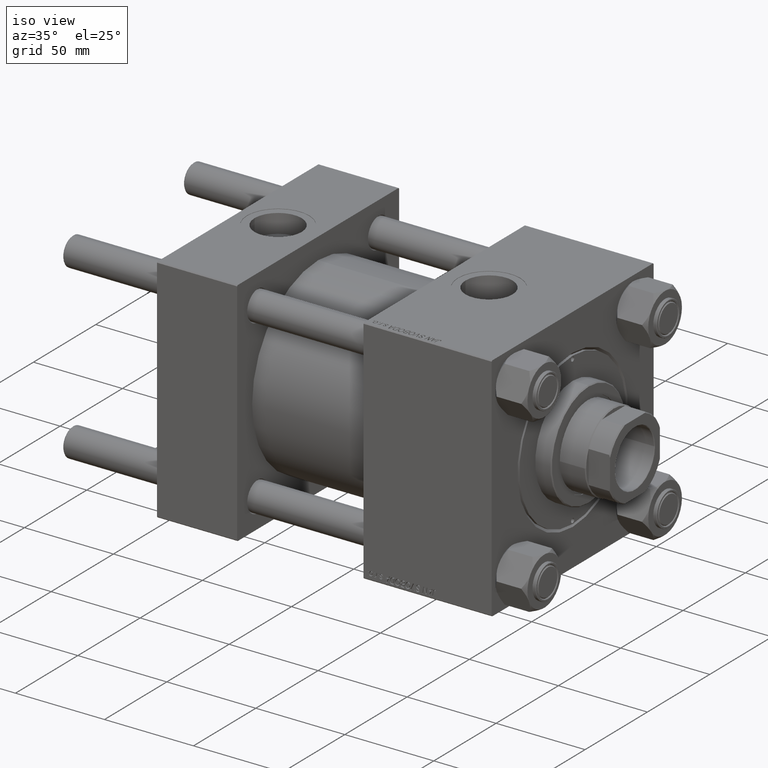
[diagram: clean part render]
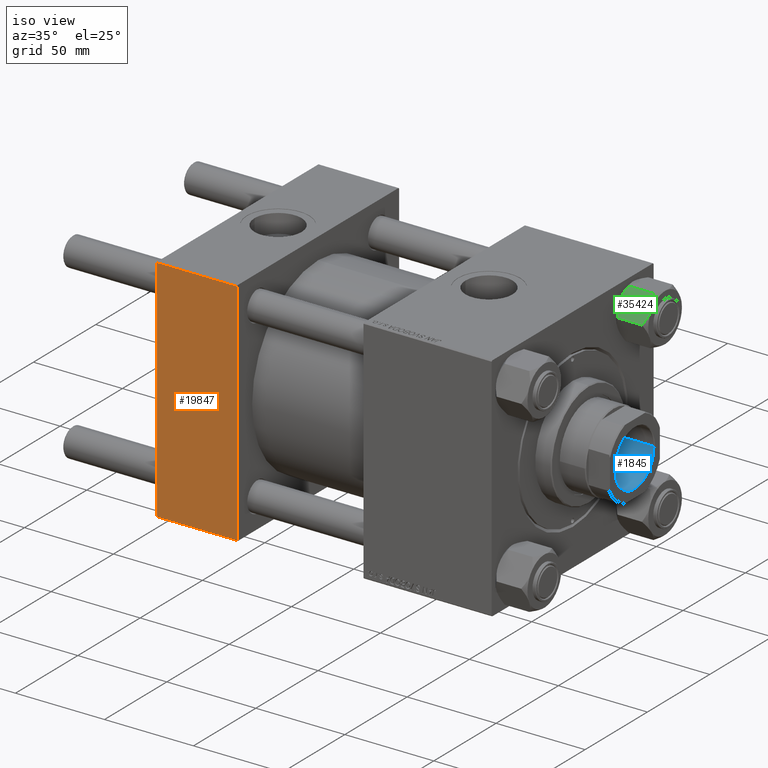
[diagram: same view with three faces highlighted in distinct colors, each labeled with its STEP entity id]
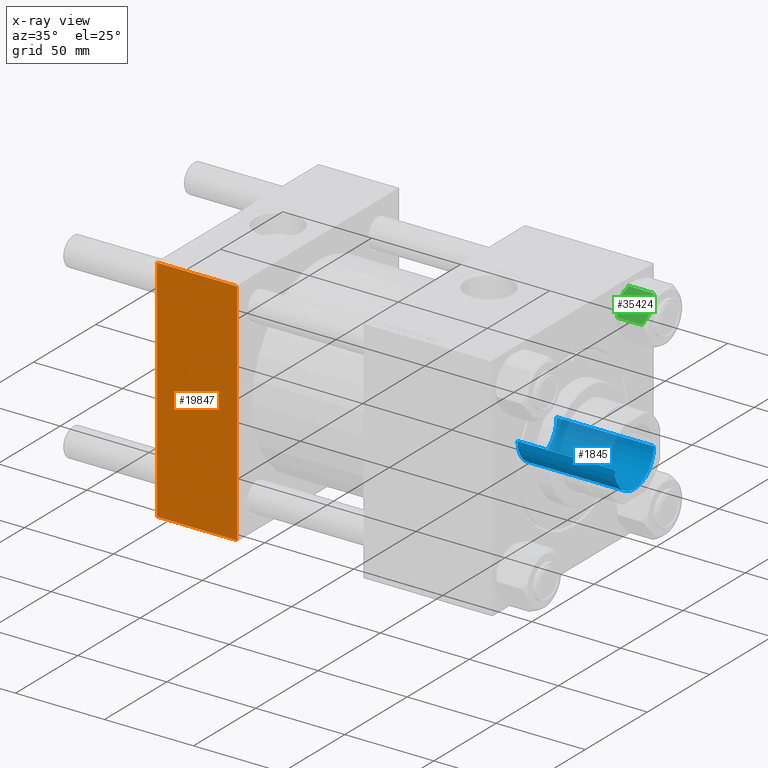
[diagram: x-ray of the same camera — body ghosted, the three highlighted faces saturated]
A machine part, iso view with three faces highlighted in distinct colors.
The next image is the same camera in x-ray (body ghosted, the three faces saturated) — at least one of them is partly hidden behind the body in this view.
Their STEP definitions:

[orange] entity #19847 — the highlighted planar face has unit normal (0, 1, 0).
#3453 = VECTOR ( 'NONE', #24790, 1000.000000000000000 ) ;
#3996 = LINE ( 'NONE', #42187, #19653 ) ;
#4502 = ORIENTED_EDGE ( 'NONE', *, *, #27428, .T. ) ;
#7323 = DIRECTION ( 'NONE',  ( 1.000000000000000000, 0.000000000000000000, 0.000000000000000000 ) ) ;
#7455 = EDGE_LOOP ( 'NONE', ( #27649, #4502, #46572, #9833 ) ) ;
#9642 = VECTOR ( 'NONE', #18484, 1000.000000000000000 ) ;
#9833 = ORIENTED_EDGE ( 'NONE', *, *, #10905, .T. ) ;
#10905 = EDGE_CURVE ( 'NONE', #41879, #36619, #34765, .T. ) ;
#12341 = CARTESIAN_POINT ( 'NONE',  ( 45.00000000000000000, -65.00000000000000000, -64.49999999999991473 ) ) ;
#14450 = LINE ( 'NONE', #18030, #27570 ) ;
#17614 = CARTESIAN_POINT ( 'NONE',  ( 45.00000000000000000, -65.00000000000000000, 64.50000000000000000 ) ) ;
#18030 = CARTESIAN_POINT ( 'NONE',  ( 45.00000000000000000, -65.00000000000000000, 65.00000000000000000 ) ) ;
#18205 = DIRECTION ( 'NONE',  ( 0.000000000000000000, -0.000000000000000000, 1.000000000000000000 ) ) ;
#18484 = DIRECTION ( 'NONE',  ( -1.000000000000000000, 0.000000000000000000, 0.000000000000000000 ) ) ;
#19653 = VECTOR ( 'NONE', #7323, 1000.000000000000000 ) ;
#19847 = ADVANCED_FACE ( 'NONE', ( #41374 ), #33227, .F. ) ;
#20457 = EDGE_CURVE ( 'NONE', #41879, #49352, #14450, .T. ) ;
#22532 = DIRECTION ( 'NONE',  ( -0.000000000000000000, 1.000000000000000000, 0.000000000000000000 ) ) ;
#23997 = VERTEX_POINT ( 'NONE', #45854 ) ;
#24790 = DIRECTION ( 'NONE',  ( 0.000000000000000000, 0.000000000000000000, -1.000000000000000000 ) ) ;
#27428 = EDGE_CURVE ( 'NONE', #23997, #49352, #3996, .T. ) ;
#27570 = VECTOR ( 'NONE', #33550, 1000.000000000000000 ) ;
#27649 = ORIENTED_EDGE ( 'NONE', *, *, #31880, .T. ) ;
#28600 = LINE ( 'NONE', #44144, #3453 ) ;
#29180 = AXIS2_PLACEMENT_3D ( 'NONE', #41870, #22532, #18205 ) ;
#31880 = EDGE_CURVE ( 'NONE', #36619, #23997, #28600, .T. ) ;
#32853 = CARTESIAN_POINT ( 'NONE',  ( 0.000000000000000000, -65.00000000000000000, 64.50000000000000000 ) ) ;
#33227 = PLANE ( 'NONE',  #29180 ) ;
#33550 = DIRECTION ( 'NONE',  ( 0.000000000000000000, 0.000000000000000000, -1.000000000000000000 ) ) ;
#34765 = LINE ( 'NONE', #50314, #9642 ) ;
#36619 = VERTEX_POINT ( 'NONE', #32853 ) ;
#41374 = FACE_OUTER_BOUND ( 'NONE', #7455, .T. ) ;
#41870 = CARTESIAN_POINT ( 'NONE',  ( 45.00000000000000000, -65.00000000000000000, 65.00000000000000000 ) ) ;
#41879 = VERTEX_POINT ( 'NONE', #17614 ) ;
#42187 = CARTESIAN_POINT ( 'NONE',  ( 45.00000000000000000, -65.00000000000000000, -64.49999999999991473 ) ) ;
#44144 = CARTESIAN_POINT ( 'NONE',  ( 0.000000000000000000, -65.00000000000000000, 65.00000000000000000 ) ) ;
#45854 = CARTESIAN_POINT ( 'NONE',  ( 0.000000000000000000, -65.00000000000000000, -64.49999999999991473 ) ) ;
#46572 = ORIENTED_EDGE ( 'NONE', *, *, #20457, .F. ) ;
#49352 = VERTEX_POINT ( 'NONE', #12341 ) ;
#50314 = CARTESIAN_POINT ( 'NONE',  ( 45.00000000000000000, -65.00000000000000000, 64.50000000000000000 ) ) ;

[blue] entity #1845 — the highlighted cylindrical surface (edge-blend (fillet) strip) has radius 15.75 mm, axis along (1, 0, -0).
#415 = CARTESIAN_POINT ( 'NONE',  ( -15.74999999999998934, 1.928818708657080161E-15, 123.0000000000000142 ) ) ;
#1845 = ADVANCED_FACE ( 'NONE', ( #21239 ), #28872, .F. ) ;
#3588 = CARTESIAN_POINT ( 'NONE',  ( 15.74999999999998934, 0.000000000000000000, 123.0000000000000142 ) ) ;
#5539 = AXIS2_PLACEMENT_3D ( 'NONE', #29521, #29775, #49392 ) ;
#6394 = DIRECTION ( 'NONE',  ( -0.000000000000000000, -0.000000000000000000, 1.000000000000000000 ) ) ;
#7789 = CARTESIAN_POINT ( 'NONE',  ( 15.74999999999999289, 0.000000000000000000, 177.6999999999999886 ) ) ;
#8179 = CARTESIAN_POINT ( 'NONE',  ( 0.000000000000000000, 0.000000000000000000, 177.6999999999999886 ) ) ;
#10460 = LINE ( 'NONE', #48664, #46602 ) ;
#13659 = DIRECTION ( 'NONE',  ( -0.000000000000000000, -0.000000000000000000, 1.000000000000000000 ) ) ;
#14756 = ORIENTED_EDGE ( 'NONE', *, *, #46018, .T. ) ;
#15768 = EDGE_LOOP ( 'NONE', ( #18475, #17594, #46747, #14756 ) ) ;
#16421 = VERTEX_POINT ( 'NONE', #415 ) ;
#17485 = LINE ( 'NONE', #48554, #33861 ) ;
#17594 = ORIENTED_EDGE ( 'NONE', *, *, #18196, .F. ) ;
#17612 = CIRCLE ( 'NONE', #32219, 15.74999999999999289 ) ;
#18196 = EDGE_CURVE ( 'NONE', #21050, #16421, #27460, .T. ) ;
#18475 = ORIENTED_EDGE ( 'NONE', *, *, #42958, .F. ) ;
#21050 = VERTEX_POINT ( 'NONE', #3588 ) ;
#21239 = FACE_OUTER_BOUND ( 'NONE', #15768, .T. ) ;
#22518 = DIRECTION ( 'NONE',  ( 0.000000000000000000, 0.000000000000000000, 1.000000000000000000 ) ) ;
#24559 = CARTESIAN_POINT ( 'NONE',  ( 0.000000000000000000, 0.000000000000000000, 178.0000000000000284 ) ) ;
#24636 = VERTEX_POINT ( 'NONE', #7789 ) ;
#27460 = CIRCLE ( 'NONE', #5539, 15.74999999999998934 ) ;
#27751 = DIRECTION ( 'NONE',  ( 1.000000000000000000, 0.000000000000000000, 0.000000000000000000 ) ) ;
#28872 = CYLINDRICAL_SURFACE ( 'NONE', #41868, 15.74999999999999289 ) ;
#29521 = CARTESIAN_POINT ( 'NONE',  ( 0.000000000000000000, 0.000000000000000000, 123.0000000000000142 ) ) ;
#29775 = DIRECTION ( 'NONE',  ( -0.000000000000000000, -0.000000000000000000, 1.000000000000000000 ) ) ;
#32219 = AXIS2_PLACEMENT_3D ( 'NONE', #8179, #22518, #27751 ) ;
#33861 = VECTOR ( 'NONE', #13659, 1000.000000000000000 ) ;
#40787 = VERTEX_POINT ( 'NONE', #48354 ) ;
#41868 = AXIS2_PLACEMENT_3D ( 'NONE', #24559, #48489, #43917 ) ;
#42958 = EDGE_CURVE ( 'NONE', #16421, #40787, #17485, .T. ) ;
#43917 = DIRECTION ( 'NONE',  ( 1.000000000000000000, 0.000000000000000000, 0.000000000000000000 ) ) ;
#46018 = EDGE_CURVE ( 'NONE', #24636, #40787, #17612, .T. ) ;
#46602 = VECTOR ( 'NONE', #6394, 1000.000000000000000 ) ;
#46747 = ORIENTED_EDGE ( 'NONE', *, *, #48712, .T. ) ;
#48354 = CARTESIAN_POINT ( 'NONE',  ( -15.74999999999999289, 1.928818708657080556E-15, 177.6999999999999886 ) ) ;
#48489 = DIRECTION ( 'NONE',  ( -0.000000000000000000, -0.000000000000000000, 1.000000000000000000 ) ) ;
#48554 = CARTESIAN_POINT ( 'NONE',  ( -15.74999999999999289, 1.928818708657080556E-15, 178.0000000000000284 ) ) ;
#48664 = CARTESIAN_POINT ( 'NONE',  ( 15.74999999999999289, 0.000000000000000000, 178.0000000000000284 ) ) ;
#48712 = EDGE_CURVE ( 'NONE', #21050, #24636, #10460, .T. ) ;
#49392 = DIRECTION ( 'NONE',  ( 1.000000000000000000, 0.000000000000000000, 0.000000000000000000 ) ) ;

[green] entity #35424 — the highlighted planar face has unit normal (0, 0.8135, -0.5816).
#335 = CARTESIAN_POINT ( 'NONE',  ( -15.62000000000000277, -9.678749765951853952E-16, -1.999999999999998224 ) ) ;
#455 = CARTESIAN_POINT ( 'NONE',  ( -14.92760668674624647, -1.199260397376458398, -1.411989271640067045 ) ) ;
#500 = CARTESIAN_POINT ( 'NONE',  ( -15.62000000000000277, -9.678749765951853952E-16, -16.00000000000000000 ) ) ;
#616 = CARTESIAN_POINT ( 'NONE',  ( -9.114548888011778871, -11.26777185211904353, -17.08577173959730544 ) ) ;
#864 = CARTESIAN_POINT ( 'NONE',  ( -7.903528262322667253, -13.36532110482643176, -16.00000000000000000 ) ) ;
#957 = CARTESIAN_POINT ( 'NONE',  ( -13.36540581434587338, -3.905071680002329515, -0.3836066851120569221 ) ) ;
#1040 = CARTESIAN_POINT ( 'NONE',  ( -11.71499999999999808, -6.763658403556473964, 0.000000000000000000 ) ) ;
#1364 = PLANE ( 'NONE',  #33637 ) ;
#1451 = VERTEX_POINT ( 'NONE', #5082 ) ;
#1456 = CARTESIAN_POINT ( 'NONE',  ( -14.31545111198821019, -2.259544954993900845, -0.9142282604026920056 ) ) ;
#2286 = CARTESIAN_POINT ( 'NONE',  ( -7.809999999999990727, -13.52731680711293727, -1.999999999999998224 ) ) ;
#2762 = LINE ( 'NONE', #18282, #30549 ) ;
#3476 = VECTOR ( 'NONE', #9700, 1000.000000000000227 ) ;
#3690 = CARTESIAN_POINT ( 'NONE',  ( -12.37702203890362007, -5.617002596445060725, -18.00000000000000000 ) ) ;
#5082 = CARTESIAN_POINT ( 'NONE',  ( -15.52647173767732625, -0.1619957022865126384, -16.00000000000000000 ) ) ;
#5118 = B_SPLINE_CURVE_WITH_KNOTS ( 'NONE', 3,
 ( #42128, #3690, #8009, #7509, #42629, #11577, #31411, #23037 ),
 .UNSPECIFIED., .F., .F.,
 ( 4, 2, 2, 4 ),
 ( 0.007890825462474418753, 0.01181022244528553457, 0.01376992093669109074, 0.01572961942809664865 ),
 .UNSPECIFIED. ) ;
#5644 = VERTEX_POINT ( 'NONE', #6060 ) ;
#6060 = CARTESIAN_POINT ( 'NONE',  ( -7.903528262322667253, -13.36532110482643176, -2.000000000000000000 ) ) ;
#6781 = CARTESIAN_POINT ( 'NONE',  ( -8.506059550806609693, -12.32170630002229927, -1.434462921875002905 ) ) ;
#7289 = CARTESIAN_POINT ( 'NONE',  ( -9.124083218049230837, -11.25125790807803661, -0.9473872146228132785 ) ) ;
#7509 = CARTESIAN_POINT ( 'NONE',  ( -13.99051971937273819, -2.822342635978014158, -17.26828031537188224 ) ) ;
#8009 = CARTESIAN_POINT ( 'NONE',  ( -13.02784502466562344, -4.489744118371593373, -17.80281335400754728 ) ) ;
#8129 = CARTESIAN_POINT ( 'NONE',  ( -11.71499999999999808, -6.763658403556473964, -18.00000000000000000 ) ) ;
#9254 = CARTESIAN_POINT ( 'NONE',  ( -10.06459418565411745, -9.622245127110614860, -17.61639331488794369 ) ) ;
#9504 = DIRECTION ( 'NONE',  ( -0.5000000000000004441, 0.8660254037844382635, 0.000000000000000000 ) ) ;
#9700 = DIRECTION ( 'NONE',  ( -0.5000000000000004441, 0.8660254037844382635, 0.000000000000000000 ) ) ;
#10594 = CARTESIAN_POINT ( 'NONE',  ( -10.40215497533436739, -9.037572688741352778, -0.1971866459924528636 ) ) ;
#11577 = CARTESIAN_POINT ( 'NONE',  ( -14.92394044919338292, -1.205610507090640215, -16.56553707812499709 ) ) ;
#12173 = CARTESIAN_POINT ( 'NONE',  ( -7.809999999999990727, -13.52731680711293727, -18.00000000000000000 ) ) ;
#12813 = CARTESIAN_POINT ( 'NONE',  ( -11.71499999999999808, -6.763658403556473964, -18.00000000000000000 ) ) ;
#13311 = ORIENTED_EDGE ( 'NONE', *, *, #48124, .F. ) ;
#14767 = VERTEX_POINT ( 'NONE', #33905 ) ;
#15152 = EDGE_CURVE ( 'NONE', #14767, #44387, #24393, .T. ) ;
#16384 = CARTESIAN_POINT ( 'NONE',  ( -11.04378428799594225, -7.926238119586011877, -17.94910618364698252 ) ) ;
#16474 = CARTESIAN_POINT ( 'NONE',  ( -12.38621571200405036, -5.601078687526934274, -0.05089381635301216955 ) ) ;
#16887 = CARTESIAN_POINT ( 'NONE',  ( -7.809999999999990727, -13.52731680711293727, -18.00000000000000000 ) ) ;
#17141 = CARTESIAN_POINT ( 'NONE',  ( -7.809999999999990727, -13.52731680711293727, -1.999999999999998224 ) ) ;
#17150 = ORIENTED_EDGE ( 'NONE', *, *, #41084, .F. ) ;
#17300 = EDGE_CURVE ( 'NONE', #20277, #41691, #20073, .T. ) ;
#17372 = CARTESIAN_POINT ( 'NONE',  ( -7.809999999999990727, -13.52731680711293727, -1.999999999999998224 ) ) ;
#17720 = ORIENTED_EDGE ( 'NONE', *, *, #17300, .F. ) ;
#18234 = CARTESIAN_POINT ( 'NONE',  ( -7.903528262322667253, -13.36532110482643176, -2.000000000000000000 ) ) ;
#18282 = CARTESIAN_POINT ( 'NONE',  ( -7.809999999999990727, -13.52731680711293727, -16.00000000000000000 ) ) ;
#18489 = CARTESIAN_POINT ( 'NONE',  ( -11.71499999999999808, -6.763658403556473964, 0.000000000000000000 ) ) ;
#18742 = CARTESIAN_POINT ( 'NONE',  ( -11.05297796109637432, -7.910314210667888979, 1.661878642512937265E-15 ) ) ;
#20073 = LINE ( 'NONE', #31260, #45161 ) ;
#20277 = VERTEX_POINT ( 'NONE', #500 ) ;
#20567 = DIRECTION ( 'NONE',  ( -0.000000000000000000, -0.000000000000000000, 1.000000000000000000 ) ) ;
#20783 = B_SPLINE_CURVE_WITH_KNOTS ( 'NONE', 3,
 ( #35322, #455, #1456, #957, #31488, #16474, #47036, #48042 ),
 .UNSPECIFIED., .F., .F.,
 ( 4, 2, 2, 4 ),
 ( 4.472842642001277084E-07, 0.003945636373369319598, 0.005918230917921879150, 0.007890825462474437835 ),
 .UNSPECIFIED. ) ;
#20958 = DIRECTION ( 'NONE',  ( 0.5000000000000004441, -0.8660254037844382635, 0.000000000000000000 ) ) ;
#21103 = DIRECTION ( 'NONE',  ( -0.5000000000000004441, 0.8660254037844382635, 0.000000000000000000 ) ) ;
#21876 = DIRECTION ( 'NONE',  ( 0.5000000000000004441, -0.8660254037844382635, 0.000000000000000000 ) ) ;
#22154 = ORIENTED_EDGE ( 'NONE', *, *, #46966, .F. ) ;
#22793 = ORIENTED_EDGE ( 'NONE', *, *, #33557, .F. ) ;
#23037 = CARTESIAN_POINT ( 'NONE',  ( -15.52647173767732625, -0.1619957022865126384, -16.00000000000000000 ) ) ;
#23285 = VERTEX_POINT ( 'NONE', #38066 ) ;
#24026 = CARTESIAN_POINT ( 'NONE',  ( -11.38181071908713982, -7.340759166634878596, -18.00000000000000355 ) ) ;
#24393 = LINE ( 'NONE', #12173, #25107 ) ;
#25107 = VECTOR ( 'NONE', #20567, 1000.000000000000000 ) ;
#25574 = VECTOR ( 'NONE', #20958, 1000.000000000000227 ) ;
#25671 = VERTEX_POINT ( 'NONE', #38026 ) ;
#25689 = LINE ( 'NONE', #2286, #36838 ) ;
#25783 = ORIENTED_EDGE ( 'NONE', *, *, #37125, .F. ) ;
#27112 = VERTEX_POINT ( 'NONE', #8129 ) ;
#28837 = CARTESIAN_POINT ( 'NONE',  ( -10.38662926516871288, -9.064464007571855220, -17.75691532989870680 ) ) ;
#29035 = ORIENTED_EDGE ( 'NONE', *, *, #15152, .T. ) ;
#30549 = VECTOR ( 'NONE', #21103, 1000.000000000000227 ) ;
#31260 = CARTESIAN_POINT ( 'NONE',  ( -15.62000000000000277, -9.678749765951853952E-16, -18.00000000000000000 ) ) ;
#31411 = CARTESIAN_POINT ( 'NONE',  ( -15.22736220980735666, -0.6800686015852318578, -16.29368822085855584 ) ) ;
#31488 = CARTESIAN_POINT ( 'NONE',  ( -13.04337073483127796, -4.462852799541088267, -0.2430846701012951416 ) ) ;
#31764 = DIRECTION ( 'NONE',  ( -0.000000000000000000, -0.000000000000000000, 1.000000000000000000 ) ) ;
#33557 = EDGE_CURVE ( 'NONE', #34496, #5644, #43113, .T. ) ;
#33637 = AXIS2_PLACEMENT_3D ( 'NONE', #16887, #44385, #9504 ) ;
#33905 = CARTESIAN_POINT ( 'NONE',  ( -7.809999999999990727, -13.52731680711293727, -16.00000000000000000 ) ) ;
#34104 = EDGE_CURVE ( 'NONE', #41691, #25671, #25689, .T. ) ;
#34265 = CARTESIAN_POINT ( 'NONE',  ( -9.439480280627249087, -10.70497417113492844, -0.7317196846281118772 ) ) ;
#34496 = VERTEX_POINT ( 'NONE', #1040 ) ;
#35322 = CARTESIAN_POINT ( 'NONE',  ( -15.52647173767732625, -0.1619957022865126384, -2.000000000000000000 ) ) ;
#35424 = ADVANCED_FACE ( 'NONE', ( #36224 ), #1364, .F. ) ;
#36224 = FACE_OUTER_BOUND ( 'NONE', #45022, .T. ) ;
#36401 = ORIENTED_EDGE ( 'NONE', *, *, #47684, .F. ) ;
#36838 = VECTOR ( 'NONE', #21876, 1000.000000000000227 ) ;
#37125 = EDGE_CURVE ( 'NONE', #5644, #44387, #39555, .T. ) ;
#38026 = CARTESIAN_POINT ( 'NONE',  ( -15.52647173767732625, -0.1619957022865126384, -2.000000000000000000 ) ) ;
#38066 = CARTESIAN_POINT ( 'NONE',  ( -7.903528262322667253, -13.36532110482643176, -16.00000000000000000 ) ) ;
#38329 = CARTESIAN_POINT ( 'NONE',  ( -8.202637790192634171, -12.84724820552771085, -1.706311779141443496 ) ) ;
#39555 = LINE ( 'NONE', #17141, #25574 ) ;
#39911 = EDGE_CURVE ( 'NONE', #14767, #23285, #2762, .T. ) ;
#41004 = B_SPLINE_CURVE_WITH_KNOTS ( 'NONE', 3,
 ( #864, #44388, #616, #9254, #28837, #16384, #24026, #12813 ),
 .UNSPECIFIED., .F., .F.,
 ( 4, 2, 2, 4 ),
 ( 4.472842641837737257E-07, 0.003945636373369302251, 0.005918230917921860068, 0.007890825462474418753 ),
 .UNSPECIFIED. ) ;
#41084 = EDGE_CURVE ( 'NONE', #25671, #34496, #20783, .T. ) ;
#41691 = VERTEX_POINT ( 'NONE', #335 ) ;
#42128 = CARTESIAN_POINT ( 'NONE',  ( -11.71499999999999808, -6.763658403556473964, -18.00000000000000000 ) ) ;
#42629 = CARTESIAN_POINT ( 'NONE',  ( -14.30591678195075644, -2.276058899034903771, -17.05261278537718539 ) ) ;
#43113 = B_SPLINE_CURVE_WITH_KNOTS ( 'NONE', 3,
 ( #18489, #18742, #10594, #34265, #7289, #6781, #38329, #18234 ),
 .UNSPECIFIED., .F., .F.,
 ( 4, 2, 2, 4 ),
 ( 0.007890825462474437835, 0.01181022244528555365, 0.01376992093669110982, 0.01572961942809666600 ),
 .UNSPECIFIED. ) ;
#43643 = ORIENTED_EDGE ( 'NONE', *, *, #34104, .F. ) ;
#44385 = DIRECTION ( 'NONE',  ( 0.8660254037844383745, 0.5000000000000005551, 0.000000000000000000 ) ) ;
#44387 = VERTEX_POINT ( 'NONE', #17372 ) ;
#44388 = CARTESIAN_POINT ( 'NONE',  ( -8.502393313253744367, -12.32805640973649020, -16.58801072835993295 ) ) ;
#45022 = EDGE_LOOP ( 'NONE', ( #49169, #29035, #25783, #22793, #17150, #43643, #17720, #13311, #36401, #22154 ) ) ;
#45082 = CARTESIAN_POINT ( 'NONE',  ( -7.809999999999990727, -13.52731680711293727, -16.00000000000000000 ) ) ;
#45161 = VECTOR ( 'NONE', #31764, 1000.000000000000000 ) ;
#46966 = EDGE_CURVE ( 'NONE', #23285, #27112, #41004, .T. ) ;
#47036 = CARTESIAN_POINT ( 'NONE',  ( -12.04818928091285102, -6.186557640478069331, 1.785545452812065115E-15 ) ) ;
#47684 = EDGE_CURVE ( 'NONE', #27112, #1451, #5118, .T. ) ;
#48042 = CARTESIAN_POINT ( 'NONE',  ( -11.71499999999999808, -6.763658403556473964, 0.000000000000000000 ) ) ;
#48124 = EDGE_CURVE ( 'NONE', #1451, #20277, #49412, .T. ) ;
#49169 = ORIENTED_EDGE ( 'NONE', *, *, #39911, .F. ) ;
#49412 = LINE ( 'NONE', #45082, #3476 ) ;